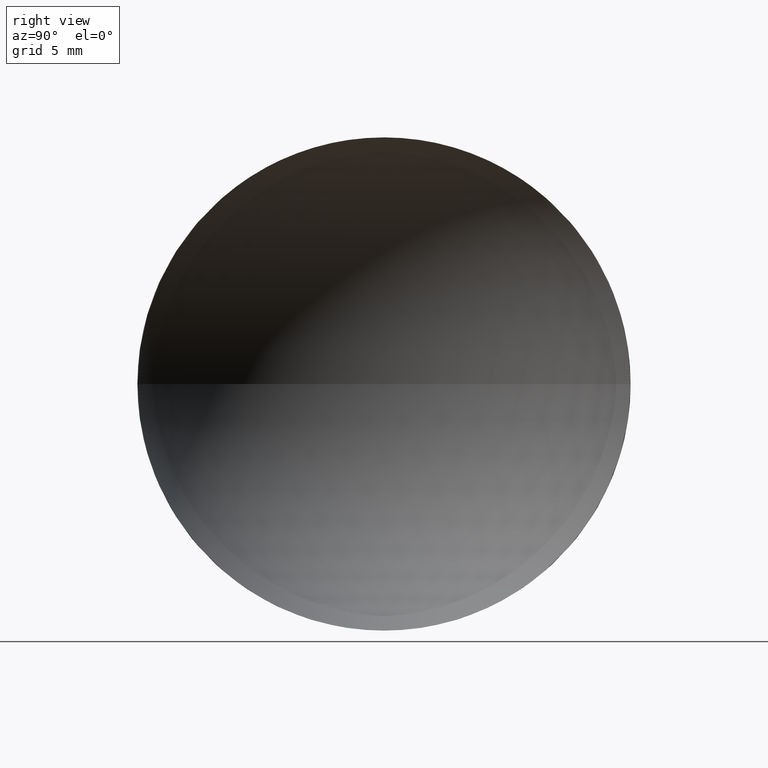
[diagram: clean part render]
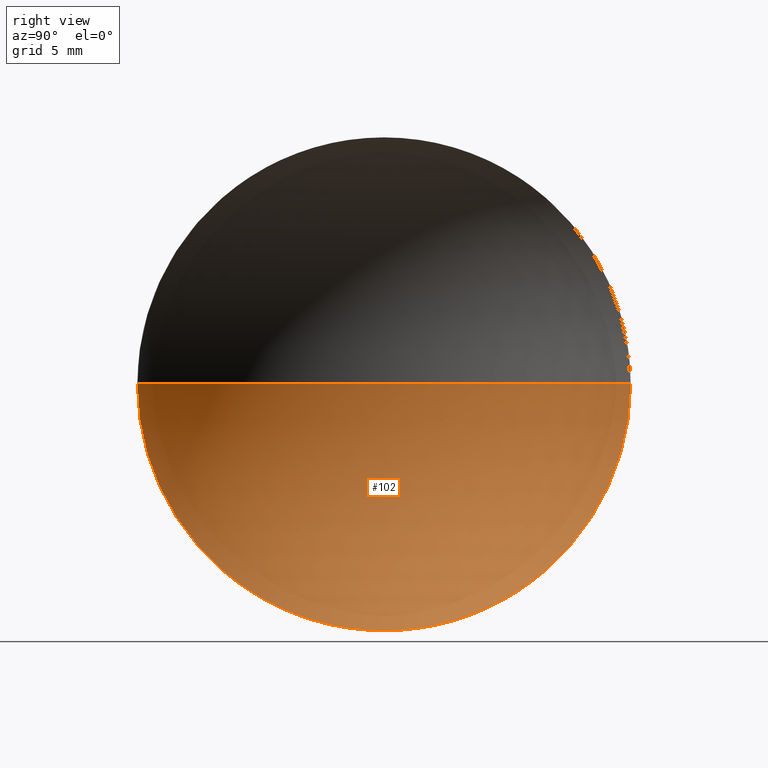
[diagram: same view with one face highlighted and labeled with its STEP entity id]
A machine part, right view. The second image highlights one B-rep face of the part: STEP entity #102.
In plain terms, the highlighted spherical surface has radius 13.1089 mm.
Its self-contained STEP definition (entity closure, byte-faithful):
#1 = AXIS2_PLACEMENT_3D ( 'NONE', #9, #139, #171 ) ;
#3 = VERTEX_POINT ( 'NONE', #167 ) ;
#9 = CARTESIAN_POINT ( 'NONE',  ( 72.64126718353050200, 32.61076812922678400, 0.0000000000000000000 ) ) ;
#23 = EDGE_CURVE ( 'NONE', #28, #106, #100, .T. ) ;
#27 = CIRCLE ( 'NONE', #87, 12.49999999999999600 ) ;
#28 = VERTEX_POINT ( 'NONE', #65 ) ;
#32 = DIRECTION ( 'NONE',  ( 0.0000000000000000000, -1.000000000000000000, 0.0000000000000000000 ) ) ;
#34 = CIRCLE ( 'NONE', #79, 13.10893013100437400 ) ;
#36 = SPHERICAL_SURFACE ( 'NONE', #104, 13.10893013100437400 ) ;
#38 = DIRECTION ( 'NONE',  ( -1.000000000000000000, -0.0000000000000000000, -0.0000000000000000000 ) ) ;
#41 = DIRECTION ( 'NONE',  ( 0.0000000000000000000, -1.000000000000000000, -1.224646799147353200E-016 ) ) ;
#44 = EDGE_CURVE ( 'NONE', #3, #61, #27, .T. ) ;
#53 = CARTESIAN_POINT ( 'NONE',  ( 72.64126718353050200, 32.61076812922678400, 0.0000000000000000000 ) ) ;
#61 = VERTEX_POINT ( 'NONE', #142 ) ;
#64 = EDGE_CURVE ( 'NONE', #3, #106, #34, .T. ) ;
#65 = CARTESIAN_POINT ( 'NONE',  ( 68.69233705252611300, 20.11076812922678800, 0.0000000000000000000 ) ) ;
#66 = EDGE_CURVE ( 'NONE', #61, #28, #129, .T. ) ;
#70 = DIRECTION ( 'NONE',  ( 0.0000000000000000000, 0.0000000000000000000, 1.000000000000000000 ) ) ;
#79 = AXIS2_PLACEMENT_3D ( 'NONE', #148, #164, #41 ) ;
#83 = ORIENTED_EDGE ( 'NONE', *, *, #23, .F. ) ;
#87 = AXIS2_PLACEMENT_3D ( 'NONE', #131, #38, #157 ) ;
#99 = AXIS2_PLACEMENT_3D ( 'NONE', #149, #107, #70 ) ;
#100 = CIRCLE ( 'NONE', #1, 13.10893013100437800 ) ;
#102 = ADVANCED_FACE ( 'NONE', ( #114 ), #36, .F. ) ;
#104 = AXIS2_PLACEMENT_3D ( 'NONE', #53, #146, #32 ) ;
#106 = VERTEX_POINT ( 'NONE', #122 ) ;
#107 = DIRECTION ( 'NONE',  ( -1.000000000000000000, -0.0000000000000000000, -0.0000000000000000000 ) ) ;
#114 = FACE_OUTER_BOUND ( 'NONE', #173, .T. ) ;
#122 = CARTESIAN_POINT ( 'NONE',  ( 59.53233705252612400, 32.61076812922678400, 0.0000000000000000000 ) ) ;
#129 = CIRCLE ( 'NONE', #99, 12.49999999999999600 ) ;
#131 = CARTESIAN_POINT ( 'NONE',  ( 68.69233705252611300, 32.61076812922678400, 0.0000000000000000000 ) ) ;
#137 = ORIENTED_EDGE ( 'NONE', *, *, #66, .F. ) ;
#138 = ORIENTED_EDGE ( 'NONE', *, *, #44, .F. ) ;
#139 = DIRECTION ( 'NONE',  ( 0.0000000000000000000, 0.0000000000000000000, -1.000000000000000000 ) ) ;
#142 = CARTESIAN_POINT ( 'NONE',  ( 68.69233705252611300, 32.61076812922678400, -12.49999999999999600 ) ) ;
#146 = DIRECTION ( 'NONE',  ( 0.0000000000000000000, 0.0000000000000000000, 1.000000000000000000 ) ) ;
#148 = CARTESIAN_POINT ( 'NONE',  ( 72.64126718353050200, 32.61076812922678400, 0.0000000000000000000 ) ) ;
#149 = CARTESIAN_POINT ( 'NONE',  ( 68.69233705252611300, 32.61076812922678400, 0.0000000000000000000 ) ) ;
#157 = DIRECTION ( 'NONE',  ( 0.0000000000000000000, 0.0000000000000000000, 1.000000000000000000 ) ) ;
#164 = DIRECTION ( 'NONE',  ( 0.0000000000000000000, -1.224646799147353200E-016, 1.000000000000000000 ) ) ;
#167 = CARTESIAN_POINT ( 'NONE',  ( 68.69233705252611300, 45.11076812922679100, 1.530808498934191500E-015 ) ) ;
#171 = DIRECTION ( 'NONE',  ( -1.000000000000000000, 0.0000000000000000000, 0.0000000000000000000 ) ) ;
#173 = EDGE_LOOP ( 'NONE', ( #138, #174, #83, #137 ) ) ;
#174 = ORIENTED_EDGE ( 'NONE', *, *, #64, .T. ) ;